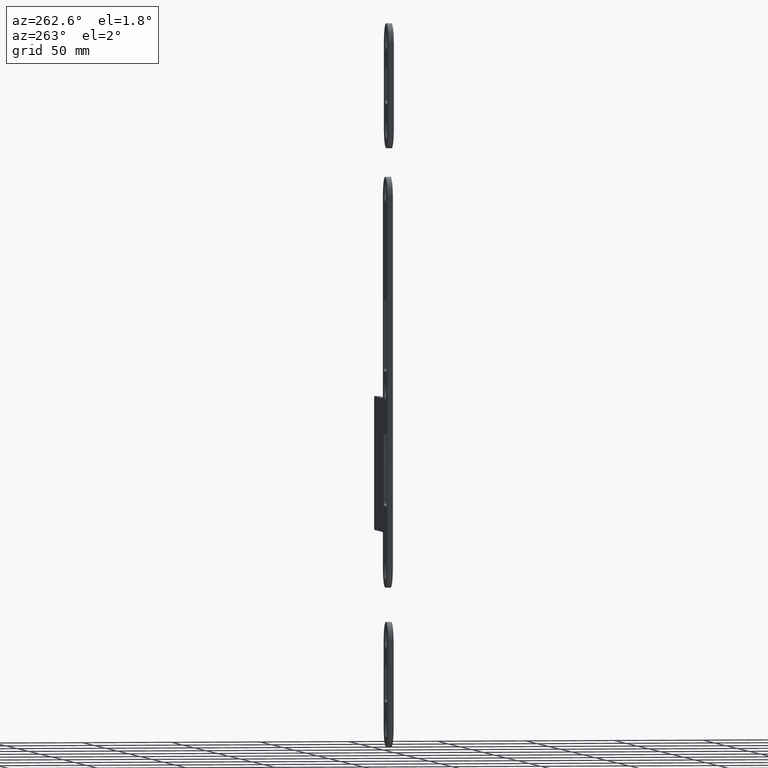
[diagram: clean part render]
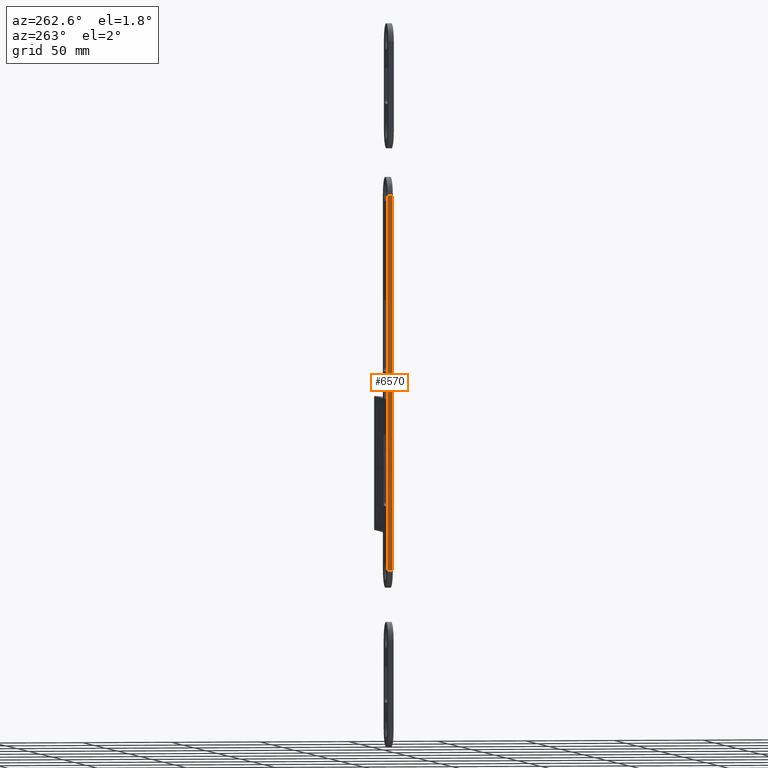
[diagram: same view with one face highlighted and labeled with its STEP entity id]
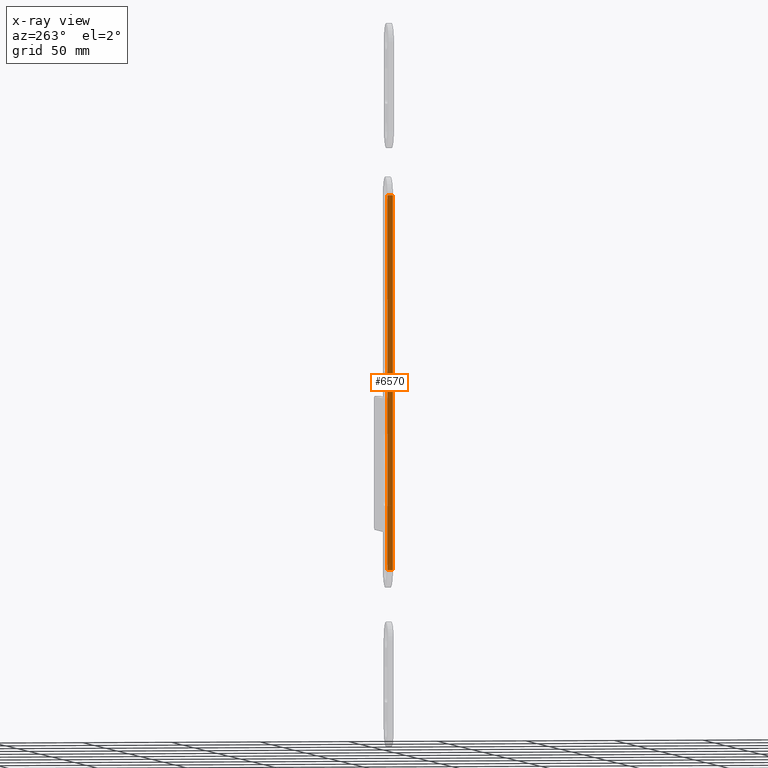
[diagram: x-ray of the same camera — body ghosted, the highlighted face saturated]
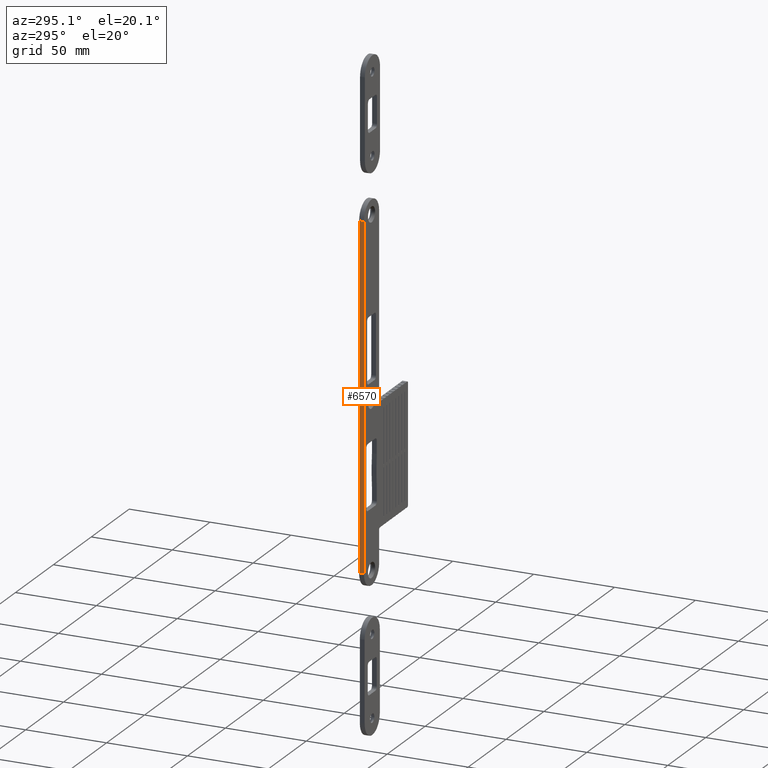
[diagram: same view with one face highlighted and labeled with its STEP entity id]
A machine part, auxiliary view. The second image highlights one B-rep face of the part: STEP entity #6570.
The next image is the same camera in x-ray: the body ghosted, the highlighted face saturated — about 0% of this face is hidden behind the body in this view.
A second angle (auxiliary view) of the same face is appended — the face is thin or edge-on in the first view.
In plain terms, the highlighted planar face has unit normal (1, 0, -0).
Its self-contained STEP definition (entity closure, byte-faithful):
#152 = EDGE_CURVE ( 'NONE', #4597, #2379, #6270, .T. ) ;
#698 = EDGE_LOOP ( 'NONE', ( #7178, #1616, #5067, #3101 ) ) ;
#902 = CARTESIAN_POINT ( 'NONE',  ( -10.00000000000001243, 0.000000000000000000, -105.0000000000000142 ) ) ;
#1152 = VERTEX_POINT ( 'NONE', #4448 ) ;
#1333 = CARTESIAN_POINT ( 'NONE',  ( -9.999999999999987566, 3.000000000000000000, 105.0000000000000284 ) ) ;
#1616 = ORIENTED_EDGE ( 'NONE', *, *, #2765, .T. ) ;
#2077 = VECTOR ( 'NONE', #7202, 1000.000000000000000 ) ;
#2245 = CARTESIAN_POINT ( 'NONE',  ( -10.00000000000001421, 0.000000000000000000, -115.0000000000000000 ) ) ;
#2379 = VERTEX_POINT ( 'NONE', #7146 ) ;
#2543 = DIRECTION ( 'NONE',  ( -1.206764157201257045E-16, 0.000000000000000000, -1.000000000000000000 ) ) ;
#2715 = DIRECTION ( 'NONE',  ( 1.206764157201257045E-16, 0.000000000000000000, 1.000000000000000000 ) ) ;
#2765 = EDGE_CURVE ( 'NONE', #1152, #4461, #4438, .T. ) ;
#2820 = CARTESIAN_POINT ( 'NONE',  ( -9.999999999999987566, 0.000000000000000000, 105.0000000000000284 ) ) ;
#3089 = CARTESIAN_POINT ( 'NONE',  ( -10.00000000000001421, 3.000000000000000000, -115.0000000000000000 ) ) ;
#3101 = ORIENTED_EDGE ( 'NONE', *, *, #152, .T. ) ;
#3401 = VECTOR ( 'NONE', #5391, 1000.000000000000000 ) ;
#3638 = PLANE ( 'NONE',  #5946 ) ;
#3946 = LINE ( 'NONE', #2245, #4310 ) ;
#4310 = VECTOR ( 'NONE', #2715, 1000.000000000000000 ) ;
#4438 = LINE ( 'NONE', #6554, #2077 ) ;
#4448 = CARTESIAN_POINT ( 'NONE',  ( -10.00000000000001243, 3.000000000000000000, -105.0000000000000142 ) ) ;
#4461 = VERTEX_POINT ( 'NONE', #902 ) ;
#4597 = VERTEX_POINT ( 'NONE', #2820 ) ;
#4637 = EDGE_CURVE ( 'NONE', #4461, #4597, #3946, .T. ) ;
#4806 = LINE ( 'NONE', #5932, #3401 ) ;
#5067 = ORIENTED_EDGE ( 'NONE', *, *, #4637, .T. ) ;
#5391 = DIRECTION ( 'NONE',  ( 1.206764157201257045E-16, 0.000000000000000000, 1.000000000000000000 ) ) ;
#5932 = CARTESIAN_POINT ( 'NONE',  ( -10.00000000000001421, 3.000000000000000000, -115.0000000000000000 ) ) ;
#5946 = AXIS2_PLACEMENT_3D ( 'NONE', #3089, #6939, #2543 ) ;
#6175 = EDGE_CURVE ( 'NONE', #1152, #2379, #4806, .T. ) ;
#6270 = LINE ( 'NONE', #1333, #6641 ) ;
#6379 = DIRECTION ( 'NONE',  ( -0.000000000000000000, 1.000000000000000000, -0.000000000000000000 ) ) ;
#6394 = FACE_OUTER_BOUND ( 'NONE', #698, .T. ) ;
#6554 = CARTESIAN_POINT ( 'NONE',  ( -10.00000000000001243, 3.000000000000000000, -105.0000000000000142 ) ) ;
#6570 = ADVANCED_FACE ( 'NONE', ( #6394 ), #3638, .F. ) ;
#6641 = VECTOR ( 'NONE', #6379, 1000.000000000000000 ) ;
#6939 = DIRECTION ( 'NONE',  ( 1.000000000000000000, 0.000000000000000000, -1.206764157201257045E-16 ) ) ;
#7146 = CARTESIAN_POINT ( 'NONE',  ( -9.999999999999987566, 3.000000000000000000, 105.0000000000000284 ) ) ;
#7178 = ORIENTED_EDGE ( 'NONE', *, *, #6175, .F. ) ;
#7202 = DIRECTION ( 'NONE',  ( 0.000000000000000000, -1.000000000000000000, 0.000000000000000000 ) ) ;